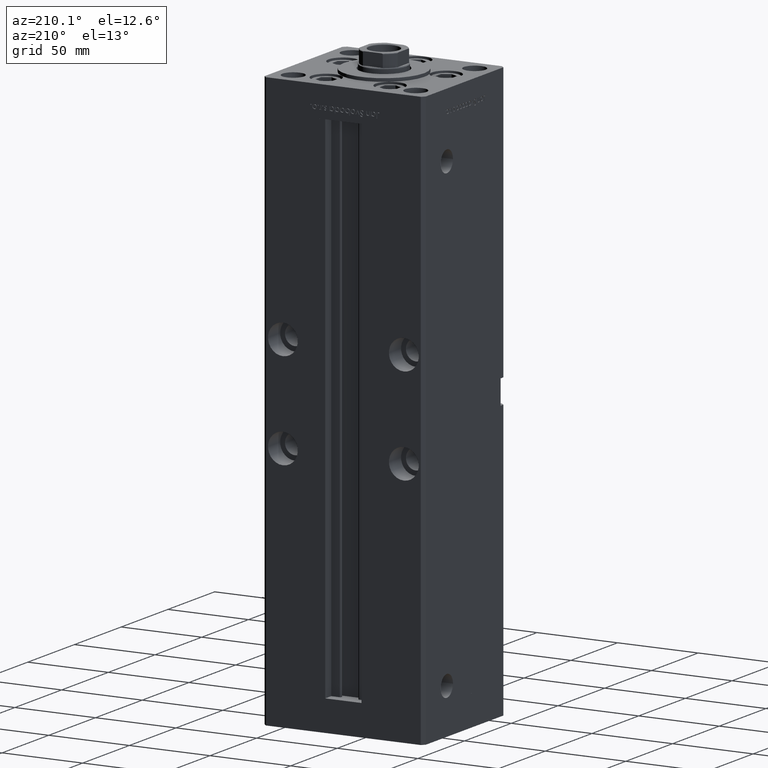
[diagram: clean part render]
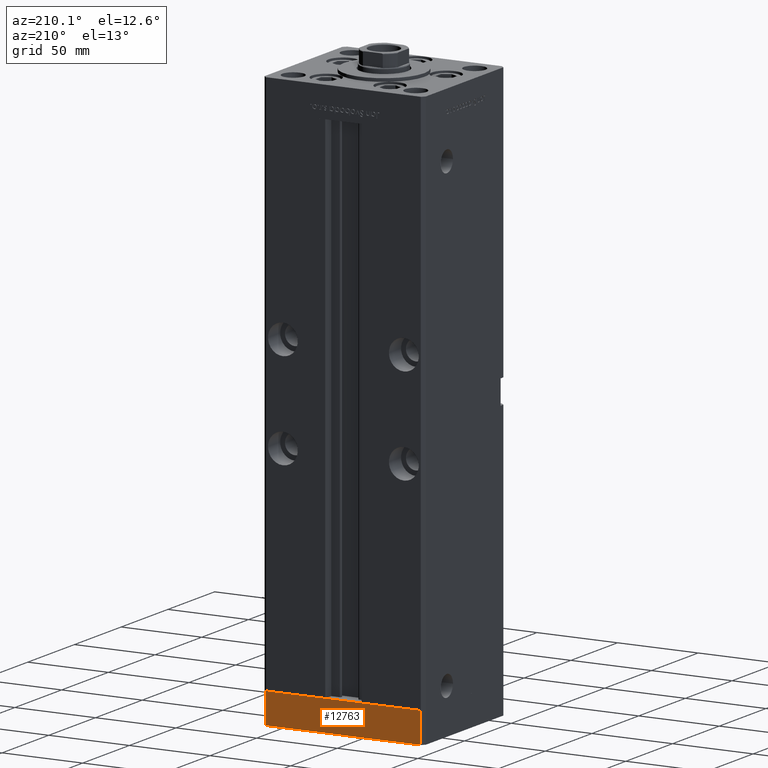
[diagram: same view with one face highlighted and labeled with its STEP entity id]
A machine part, auxiliary view. The second image highlights one B-rep face of the part: STEP entity #12763.
In plain terms, the highlighted planar face has unit normal (-0, 1, 0).
Its self-contained STEP definition (entity closure, byte-faithful):
#4789 = VECTOR ( 'NONE', #34311, 1000.000000000000000 ) ;
#6194 = CARTESIAN_POINT ( 'NONE',  ( -48.00000000000000711, 43.49999999999996447, -19.00000000000000000 ) ) ;
#7712 = EDGE_CURVE ( 'NONE', #17756, #29701, #26146, .T. ) ;
#7771 = CARTESIAN_POINT ( 'NONE',  ( 47.99999999999990763, 43.50000000000000000, -19.00000000000000000 ) ) ;
#9475 = AXIS2_PLACEMENT_3D ( 'NONE', #31300, #10113, #30778 ) ;
#10113 = DIRECTION ( 'NONE',  ( -3.614007241618350743E-16, 1.000000000000000000, 0.000000000000000000 ) ) ;
#11772 = LINE ( 'NONE', #48541, #44992 ) ;
#11881 = ORIENTED_EDGE ( 'NONE', *, *, #53012, .F. ) ;
#12763 = ADVANCED_FACE ( 'NONE', ( #35320 ), #47656, .T. ) ;
#13659 = CARTESIAN_POINT ( 'NONE',  ( 47.99999999999990763, 43.50000000000000000, -19.00000000000000000 ) ) ;
#14011 = DIRECTION ( 'NONE',  ( -1.000000000000000000, -3.614007241618350743E-16, 0.000000000000000000 ) ) ;
#17665 = LINE ( 'NONE', #13659, #4789 ) ;
#17756 = VERTEX_POINT ( 'NONE', #6194 ) ;
#22397 = DIRECTION ( 'NONE',  ( 0.000000000000000000, 0.000000000000000000, 1.000000000000000000 ) ) ;
#23128 = LINE ( 'NONE', #30121, #31931 ) ;
#24599 = EDGE_LOOP ( 'NONE', ( #40707, #11881, #25683, #35669 ) ) ;
#25683 = ORIENTED_EDGE ( 'NONE', *, *, #50749, .T. ) ;
#26146 = LINE ( 'NONE', #46010, #53055 ) ;
#29701 = VERTEX_POINT ( 'NONE', #43854 ) ;
#30121 = CARTESIAN_POINT ( 'NONE',  ( 47.99999999999990763, 43.50000000000000000, 0.000000000000000000 ) ) ;
#30778 = DIRECTION ( 'NONE',  ( -1.000000000000000000, -3.614007241618350743E-16, 0.000000000000000000 ) ) ;
#31300 = CARTESIAN_POINT ( 'NONE',  ( 47.99999999999990763, 43.50000000000000000, -19.00000000000000000 ) ) ;
#31931 = VECTOR ( 'NONE', #14011, 1000.000000000000000 ) ;
#32868 = VERTEX_POINT ( 'NONE', #38405 ) ;
#34311 = DIRECTION ( 'NONE',  ( 0.000000000000000000, 0.000000000000000000, 1.000000000000000000 ) ) ;
#35320 = FACE_OUTER_BOUND ( 'NONE', #24599, .T. ) ;
#35669 = ORIENTED_EDGE ( 'NONE', *, *, #7712, .T. ) ;
#38405 = CARTESIAN_POINT ( 'NONE',  ( 47.99999999999990763, 43.50000000000000000, 0.000000000000000000 ) ) ;
#40707 = ORIENTED_EDGE ( 'NONE', *, *, #41076, .F. ) ;
#41076 = EDGE_CURVE ( 'NONE', #32868, #29701, #23128, .T. ) ;
#43854 = CARTESIAN_POINT ( 'NONE',  ( -48.00000000000000711, 43.49999999999996447, 0.000000000000000000 ) ) ;
#44247 = DIRECTION ( 'NONE',  ( -1.000000000000000000, -3.614007241618350743E-16, 0.000000000000000000 ) ) ;
#44992 = VECTOR ( 'NONE', #44247, 1000.000000000000000 ) ;
#46010 = CARTESIAN_POINT ( 'NONE',  ( -48.00000000000000711, 43.49999999999996447, -19.00000000000000000 ) ) ;
#46334 = VERTEX_POINT ( 'NONE', #7771 ) ;
#47656 = PLANE ( 'NONE',  #9475 ) ;
#48541 = CARTESIAN_POINT ( 'NONE',  ( 47.99999999999990763, 43.50000000000000000, -19.00000000000000000 ) ) ;
#50749 = EDGE_CURVE ( 'NONE', #46334, #17756, #11772, .T. ) ;
#53012 = EDGE_CURVE ( 'NONE', #46334, #32868, #17665, .T. ) ;
#53055 = VECTOR ( 'NONE', #22397, 1000.000000000000000 ) ;